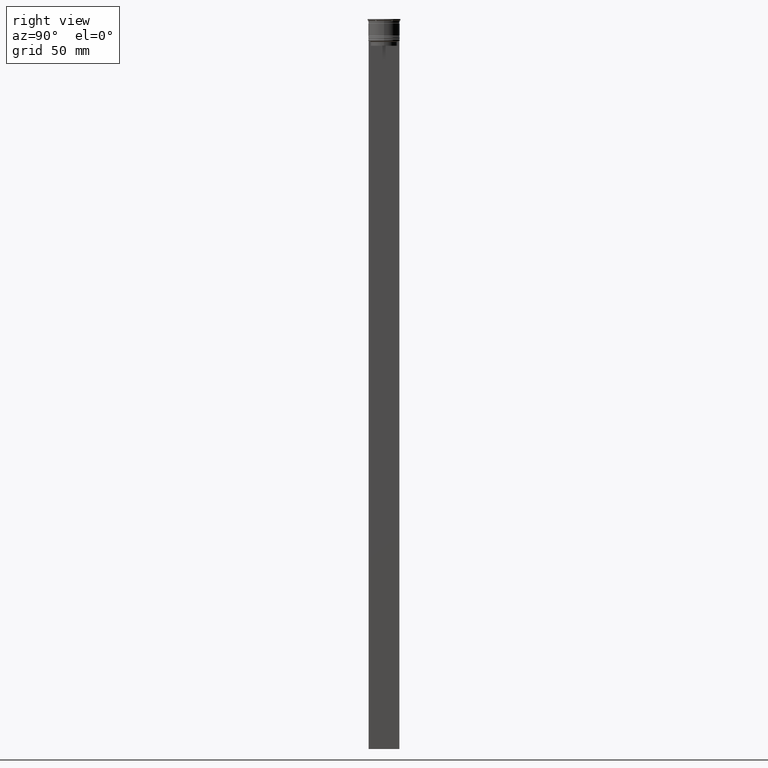
[diagram: clean part render]
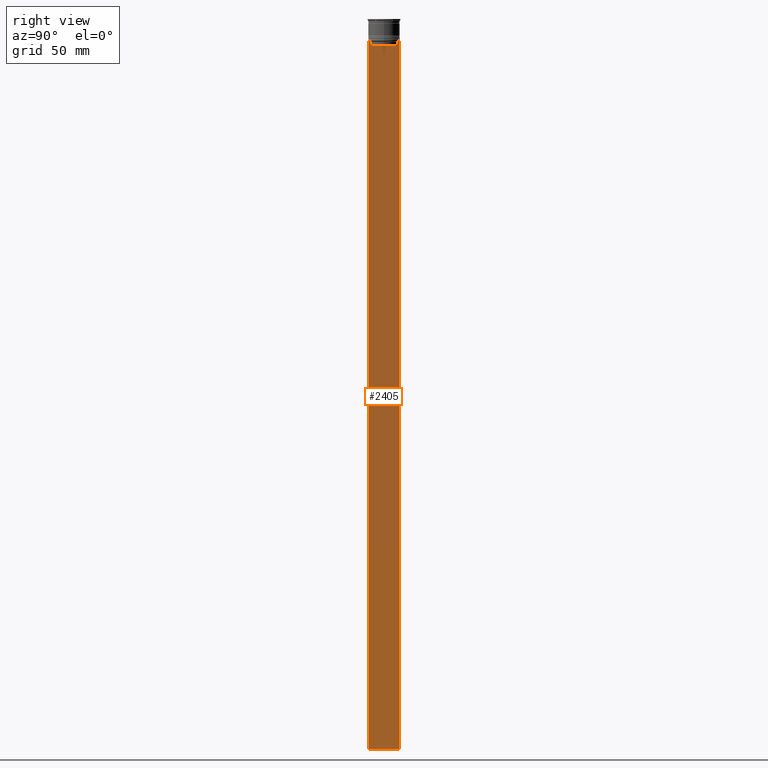
[diagram: same view with one face highlighted and labeled with its STEP entity id]
A machine part, right view. The second image highlights one B-rep face of the part: STEP entity #2405.
In plain terms, the highlighted planar face has unit normal (-1, 0, 0).
Its self-contained STEP definition (entity closure, byte-faithful):
#2 = LINE ( 'NONE', #970, #2029 ) ;
#10 = ORIENTED_EDGE ( 'NONE', *, *, #178, .T. ) ;
#55 = VERTEX_POINT ( 'NONE', #1048 ) ;
#70 = DIRECTION ( 'NONE',  ( 0.000000000000000000, 0.000000000000000000, -1.000000000000000000 ) ) ;
#74 = EDGE_CURVE ( 'NONE', #55, #633, #2476, .T. ) ;
#112 = ORIENTED_EDGE ( 'NONE', *, *, #169, .T. ) ;
#169 = EDGE_CURVE ( 'NONE', #2376, #2095, #546, .T. ) ;
#178 = EDGE_CURVE ( 'NONE', #1333, #1539, #713, .T. ) ;
#228 = EDGE_CURVE ( 'NONE', #340, #232, #902, .T. ) ;
#232 = VERTEX_POINT ( 'NONE', #1671 ) ;
#251 = EDGE_CURVE ( 'NONE', #1539, #55, #682, .T. ) ;
#260 = CARTESIAN_POINT ( 'NONE',  ( 0.4999999999999998890, -9.749999999999998224, 5.525624189766635830 ) ) ;
#288 = VECTOR ( 'NONE', #952, 1000.000000000000000 ) ;
#304 = EDGE_CURVE ( 'NONE', #2215, #633, #1651, .T. ) ;
#340 = VERTEX_POINT ( 'NONE', #1741 ) ;
#345 = CARTESIAN_POINT ( 'NONE',  ( 0.4999999999999998890, -8.885943956609230199, -14.00000000000000178 ) ) ;
#355 = EDGE_CURVE ( 'NONE', #2095, #1333, #1442, .T. ) ;
#465 = CARTESIAN_POINT ( 'NONE',  ( 0.4999999999999998890, -9.749999999999998224, -14.00000000000000178 ) ) ;
#485 = VECTOR ( 'NONE', #2225, 1000.000000000000000 ) ;
#507 = FACE_OUTER_BOUND ( 'NONE', #2447, .T. ) ;
#546 = LINE ( 'NONE', #1926, #1080 ) ;
#629 = VERTEX_POINT ( 'NONE', #2485 ) ;
#633 = VERTEX_POINT ( 'NONE', #1924 ) ;
#636 = LINE ( 'NONE', #465, #485 ) ;
#642 = CARTESIAN_POINT ( 'NONE',  ( 0.4999999999999998890, -9.749999999999998224, -464.0000000000000000 ) ) ;
#653 = ORIENTED_EDGE ( 'NONE', *, *, #1280, .T. ) ;
#682 = LINE ( 'NONE', #260, #1950 ) ;
#713 = LINE ( 'NONE', #2516, #288 ) ;
#778 = VECTOR ( 'NONE', #1468, 1000.000000000000000 ) ;
#795 = EDGE_CURVE ( 'NONE', #2215, #340, #636, .T. ) ;
#865 = ORIENTED_EDGE ( 'NONE', *, *, #74, .T. ) ;
#878 = CARTESIAN_POINT ( 'NONE',  ( 0.4999999999999998890, -9.749999999999998224, -14.00000000000000178 ) ) ;
#879 = DIRECTION ( 'NONE',  ( 0.000000000000000000, 0.000000000000000000, 1.000000000000000000 ) ) ;
#902 = B_SPLINE_CURVE_WITH_KNOTS ( 'NONE', 3,
 ( #2471, #2241, #1857, #1887 ),
 .UNSPECIFIED., .F., .F.,
 ( 4, 4 ),
 ( 0.01511546479386908018, 0.01582316445439079997 ),
 .UNSPECIFIED. ) ;
#927 = ORIENTED_EDGE ( 'NONE', *, *, #1021, .T. ) ;
#952 = DIRECTION ( 'NONE',  ( 0.000000000000000000, -1.000000000000000000, 0.000000000000000000 ) ) ;
#970 = CARTESIAN_POINT ( 'NONE',  ( 0.4999999999999998890, 8.400000000000003908, -17.00000000000000000 ) ) ;
#1021 = EDGE_CURVE ( 'NONE', #629, #2376, #2, .T. ) ;
#1048 = CARTESIAN_POINT ( 'NONE',  ( 0.4999999999999998890, -9.749999999999998224, -464.0000000000000000 ) ) ;
#1057 = CARTESIAN_POINT ( 'NONE',  ( 0.4999999999999998890, -9.749999999999998224, 5.525624189766635830 ) ) ;
#1080 = VECTOR ( 'NONE', #2501, 1000.000000000000000 ) ;
#1183 = ORIENTED_EDGE ( 'NONE', *, *, #251, .T. ) ;
#1250 = DIRECTION ( 'NONE',  ( 0.000000000000000000, 0.000000000000000000, -1.000000000000000000 ) ) ;
#1257 = ORIENTED_EDGE ( 'NONE', *, *, #795, .T. ) ;
#1280 = EDGE_CURVE ( 'NONE', #232, #629, #1583, .T. ) ;
#1333 = VERTEX_POINT ( 'NONE', #1335 ) ;
#1335 = CARTESIAN_POINT ( 'NONE',  ( 0.4999999999999998890, -8.885943956609230199, -14.00000000000000178 ) ) ;
#1390 = VECTOR ( 'NONE', #2182, 1000.000000000000000 ) ;
#1442 = B_SPLINE_CURVE_WITH_KNOTS ( 'NONE', 3,
 ( #2341, #2127, #2304, #345 ),
 .UNSPECIFIED., .F., .F.,
 ( 4, 4 ),
 ( 0.03898465126933130243, 0.03969388910599658260 ),
 .UNSPECIFIED. ) ;
#1468 = DIRECTION ( 'NONE',  ( 0.000000000000000000, 1.000000000000000000, 0.000000000000000000 ) ) ;
#1475 = CARTESIAN_POINT ( 'NONE',  ( 0.4999999999999998890, -8.385105843100616241, -17.00000000000000000 ) ) ;
#1539 = VERTEX_POINT ( 'NONE', #878 ) ;
#1562 = VECTOR ( 'NONE', #1250, 1000.000000000000000 ) ;
#1583 = LINE ( 'NONE', #2379, #1390 ) ;
#1614 = CARTESIAN_POINT ( 'NONE',  ( 0.4999999999999998890, 9.750000000000001776, -14.00000000000000178 ) ) ;
#1641 = PLANE ( 'NONE',  #2002 ) ;
#1651 = LINE ( 'NONE', #2258, #1562 ) ;
#1671 = CARTESIAN_POINT ( 'NONE',  ( 0.4999999999999998890, 8.385105843100616241, -14.50000000000000000 ) ) ;
#1741 = CARTESIAN_POINT ( 'NONE',  ( 0.4999999999999998890, 8.885943956609230199, -14.00000000000000178 ) ) ;
#1857 = CARTESIAN_POINT ( 'NONE',  ( 0.4999999999999998890, 8.552060201981378285, -14.33334167021640582 ) ) ;
#1886 = ORIENTED_EDGE ( 'NONE', *, *, #304, .F. ) ;
#1887 = CARTESIAN_POINT ( 'NONE',  ( 0.4999999999999998890, 8.385105843100616241, -14.50000000000000000 ) ) ;
#1895 = DIRECTION ( 'NONE',  ( -1.000000000000000000, 0.000000000000000000, 0.000000000000000000 ) ) ;
#1924 = CARTESIAN_POINT ( 'NONE',  ( 0.4999999999999998890, 9.750000000000001776, -464.0000000000000000 ) ) ;
#1926 = CARTESIAN_POINT ( 'NONE',  ( 0.4999999999999998890, -8.385105843100616241, 0.000000000000000000 ) ) ;
#1940 = DIRECTION ( 'NONE',  ( 0.000000000000000000, -1.000000000000000000, 0.000000000000000000 ) ) ;
#1950 = VECTOR ( 'NONE', #70, 1000.000000000000000 ) ;
#2002 = AXIS2_PLACEMENT_3D ( 'NONE', #1057, #1895, #879 ) ;
#2029 = VECTOR ( 'NONE', #1940, 1000.000000000000000 ) ;
#2095 = VERTEX_POINT ( 'NONE', #2132 ) ;
#2106 = ORIENTED_EDGE ( 'NONE', *, *, #355, .T. ) ;
#2127 = CARTESIAN_POINT ( 'NONE',  ( 0.4999999999999998890, -8.552060194457768105, -14.33334167772667556 ) ) ;
#2132 = CARTESIAN_POINT ( 'NONE',  ( 0.4999999999999998890, -8.385105843100616241, -14.50000000000000000 ) ) ;
#2182 = DIRECTION ( 'NONE',  ( 0.000000000000000000, 0.000000000000000000, -1.000000000000000000 ) ) ;
#2215 = VERTEX_POINT ( 'NONE', #1614 ) ;
#2225 = DIRECTION ( 'NONE',  ( 0.000000000000000000, -1.000000000000000000, 0.000000000000000000 ) ) ;
#2241 = CARTESIAN_POINT ( 'NONE',  ( 0.4999999999999998890, 8.719005771582347464, -14.16667453442325453 ) ) ;
#2254 = ORIENTED_EDGE ( 'NONE', *, *, #228, .T. ) ;
#2258 = CARTESIAN_POINT ( 'NONE',  ( 0.4999999999999998890, 9.750000000000001776, 5.525624189766635830 ) ) ;
#2304 = CARTESIAN_POINT ( 'NONE',  ( 0.4999999999999998890, -8.719005764482787413, -14.16667454151160044 ) ) ;
#2341 = CARTESIAN_POINT ( 'NONE',  ( 0.4999999999999998890, -8.385105843100616241, -14.50000000000000000 ) ) ;
#2376 = VERTEX_POINT ( 'NONE', #1475 ) ;
#2379 = CARTESIAN_POINT ( 'NONE',  ( 0.4999999999999998890, 8.385105843100616241, 0.000000000000000000 ) ) ;
#2405 = ADVANCED_FACE ( 'NONE', ( #507 ), #1641, .F. ) ;
#2447 = EDGE_LOOP ( 'NONE', ( #1257, #2254, #653, #927, #112, #2106, #10, #1183, #865, #1886 ) ) ;
#2471 = CARTESIAN_POINT ( 'NONE',  ( 0.4999999999999998890, 8.885943956609230199, -14.00000000000000178 ) ) ;
#2476 = LINE ( 'NONE', #642, #778 ) ;
#2485 = CARTESIAN_POINT ( 'NONE',  ( 0.4999999999999998890, 8.385105843100616241, -17.00000000000000000 ) ) ;
#2501 = DIRECTION ( 'NONE',  ( -0.000000000000000000, -0.000000000000000000, 1.000000000000000000 ) ) ;
#2516 = CARTESIAN_POINT ( 'NONE',  ( 0.4999999999999998890, -9.749999999999998224, -14.00000000000000178 ) ) ;